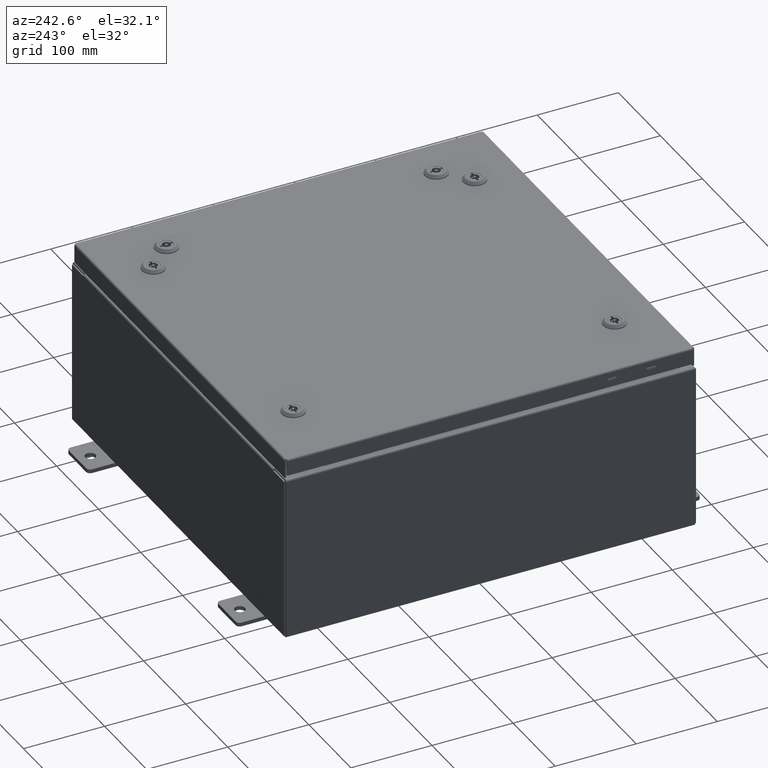
[diagram: clean part render]
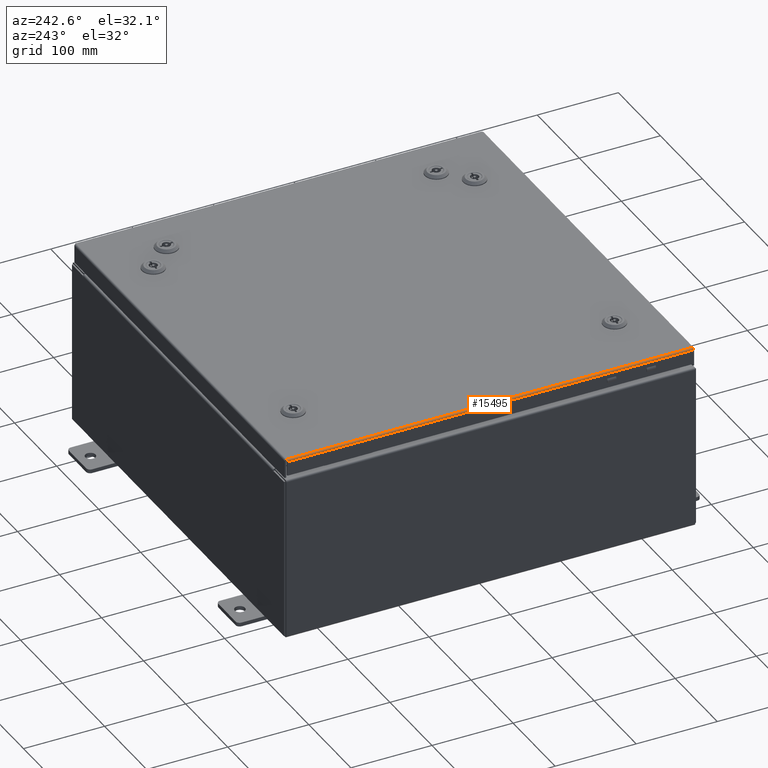
[diagram: same view with one face highlighted and labeled with its STEP entity id]
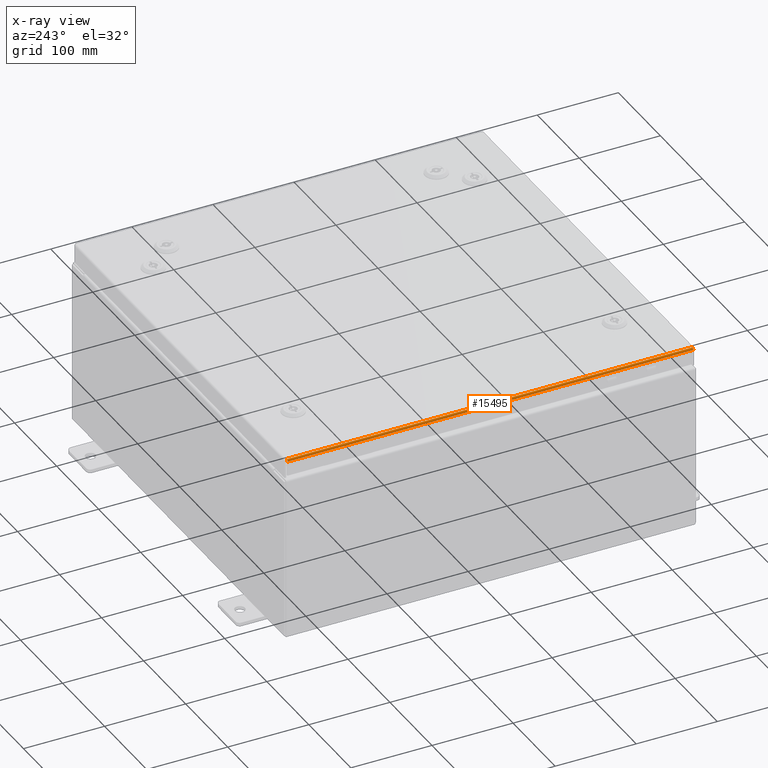
[diagram: x-ray of the same camera — body ghosted, the highlighted face saturated]
A machine part, auxiliary view. The second image highlights one B-rep face of the part: STEP entity #15495.
The next image is the same camera in x-ray: the body ghosted, the highlighted face saturated — about 0% of this face is hidden behind the body in this view.
In plain terms, the highlighted cylindrical surface (edge-blend (fillet) strip) has radius 2.2276 mm, axis along (0, 1, 0).
Its self-contained STEP definition (entity closure, byte-faithful):
#433 = EDGE_LOOP ( 'NONE', ( #58012, #15001, #61256, #41001 ) ) ;
#2047 = CARTESIAN_POINT ( 'NONE',  ( -9.937500000000001800, 9.848657864376269400, -0.08770000000000026400 ) ) ;
#2262 = CARTESIAN_POINT ( 'NONE',  ( -9.937500000000000000, -9.848657864376273000, -0.08770000000000026400 ) ) ;
#4376 = CARTESIAN_POINT ( 'NONE',  ( -9.872755289458313000, -9.849609644062715200, -0.002282596256190999900 ) ) ;
#9315 = CARTESIAN_POINT ( 'NONE',  ( -9.903695747341799900, -9.849324110156782600, -0.01756921792168139200 ) ) ;
#9392 = EDGE_CURVE ( 'NONE', #31898, #34465, #19656, .T. ) ;
#13296 = VERTEX_POINT ( 'NONE', #33043 ) ;
#14313 = CARTESIAN_POINT ( 'NONE',  ( -9.926431066258668800, -9.849038576250846300, -0.04353261542147312400 ) ) ;
#15001 = ORIENTED_EDGE ( 'NONE', *, *, #15307, .F. ) ;
#15307 = EDGE_CURVE ( 'NONE', #13296, #31898, #26322, .T. ) ;
#15311 = VERTEX_POINT ( 'NONE', #2262 ) ;
#15349 = DIRECTION ( 'NONE',  ( 0.0000000000000000000, -1.000000000000000000, 0.0000000000000000000 ) ) ;
#15495 = ADVANCED_FACE ( 'NONE', ( #50038 ), #22418, .T. ) ;
#16258 = AXIS2_PLACEMENT_3D ( 'NONE', #17965, #57057, #27799 ) ;
#16929 = CARTESIAN_POINT ( 'NONE',  ( -9.926431066258667000, 9.849038576250844600, -0.04353261542147309600 ) ) ;
#17965 = CARTESIAN_POINT ( 'NONE',  ( -9.849800000000001900, 9.849799999999996600, -0.08770000000000026400 ) ) ;
#19239 = CARTESIAN_POINT ( 'NONE',  ( -9.937500000000000000, -9.848753042344915400, -0.07622009684500730100 ) ) ;
#19656 = LINE ( 'NONE', #30105, #32734 ) ;
#21789 = CARTESIAN_POINT ( 'NONE',  ( -9.903695747341799900, 9.849324110156775400, -0.01756921792168139200 ) ) ;
#22418 = CYLINDRICAL_SURFACE ( 'NONE', #16258, 0.08769999999999808500 ) ;
#23687 = LINE ( 'NONE', #31235, #35243 ) ;
#23929 = CARTESIAN_POINT ( 'NONE',  ( -9.861279903154994000, -9.849704822031359400, -2.356919197365833100E-015 ) ) ;
#25450 = CARTESIAN_POINT ( 'NONE',  ( -9.849799999999996600, -9.849800000000001900, 0.0000000000000000000 ) ) ;
#26322 = B_SPLINE_CURVE_WITH_KNOTS ( 'NONE', 3,
 ( #2047, #31524, #46251, #16929, #51163, #21789, #56006, #26768, #60968, #31734 ),
 .UNSPECIFIED., .F., .F.,
 ( 4, 2, 2, 2, 4 ),
 ( 0.0000000000000000000, 0.2500000000000000000, 0.5000000000000000000, 0.7500000000000000000, 1.000000000000000000 ),
 .UNSPECIFIED. ) ;
#26768 = CARTESIAN_POINT ( 'NONE',  ( -9.872755289458309500, 9.849609644062709900, -0.002282596256190999900 ) ) ;
#27799 = DIRECTION ( 'NONE',  ( -1.000000000000000000, 0.0000000000000000000, 6.035297021350771100E-015 ) ) ;
#30105 = CARTESIAN_POINT ( 'NONE',  ( -9.849800000000001900, 9.849799999999996600, -2.185478394931410600E-015 ) ) ;
#31235 = CARTESIAN_POINT ( 'NONE',  ( -9.937500000000000000, -9.937500000000001800, -0.08770000000000026400 ) ) ;
#31524 = CARTESIAN_POINT ( 'NONE',  ( -9.937499999999994700, 9.848753042344910100, -0.07622009684500730100 ) ) ;
#31734 = CARTESIAN_POINT ( 'NONE',  ( -9.849800000000001900, 9.849799999999996600, -2.185478394931410600E-015 ) ) ;
#31898 = VERTEX_POINT ( 'NONE', #33153 ) ;
#32734 = VECTOR ( 'NONE', #15349, 39.37007874015748100 ) ;
#32988 = EDGE_CURVE ( 'NONE', #13296, #15311, #23687, .T. ) ;
#33043 = CARTESIAN_POINT ( 'NONE',  ( -9.937500000000001800, 9.848657864376269400, -0.08770000000000026400 ) ) ;
#33153 = CARTESIAN_POINT ( 'NONE',  ( -9.849800000000001900, 9.849799999999996600, -2.185478394931410600E-015 ) ) ;
#34465 = VERTEX_POINT ( 'NONE', #25450 ) ;
#35243 = VECTOR ( 'NONE', #36177, 39.37007874015748100 ) ;
#35512 = EDGE_CURVE ( 'NONE', #34465, #15311, #59288, .T. ) ;
#36177 = DIRECTION ( 'NONE',  ( 1.099611771034679600E-016, -1.000000000000000000, -4.554220009055657300E-045 ) ) ;
#38733 = CARTESIAN_POINT ( 'NONE',  ( -9.893967384578521900, -9.849419288125425000, -0.01106893374133357700 ) ) ;
#41001 = ORIENTED_EDGE ( 'NONE', *, *, #35512, .F. ) ;
#43655 = CARTESIAN_POINT ( 'NONE',  ( -9.919930782078322900, -9.849133754219494100, -0.03380425265820124300 ) ) ;
#46251 = CARTESIAN_POINT ( 'NONE',  ( -9.935217403743813200, 9.848848220313559700, -0.06474471054169149400 ) ) ;
#48575 = CARTESIAN_POINT ( 'NONE',  ( -9.935217403743813200, -9.848848220313561400, -0.06474471054169148000 ) ) ;
#50038 = FACE_OUTER_BOUND ( 'NONE', #433, .T. ) ;
#51163 = CARTESIAN_POINT ( 'NONE',  ( -9.919930782078322900, 9.849133754219488800, -0.03380425265820124300 ) ) ;
#53440 = CARTESIAN_POINT ( 'NONE',  ( -9.937500000000000000, -9.848657864376273000, -0.08770000000000026400 ) ) ;
#56006 = CARTESIAN_POINT ( 'NONE',  ( -9.893967384578527200, 9.849419288125421400, -0.01106893374133357900 ) ) ;
#57057 = DIRECTION ( 'NONE',  ( -0.0000000000000000000, 1.000000000000000000, -0.0000000000000000000 ) ) ;
#58012 = ORIENTED_EDGE ( 'NONE', *, *, #9392, .F. ) ;
#59288 = B_SPLINE_CURVE_WITH_KNOTS ( 'NONE', 3,
 ( #63065, #23929, #4376, #38733, #9315, #43655, #14313, #48575, #19239, #53440 ),
 .UNSPECIFIED., .F., .F.,
 ( 4, 2, 2, 2, 4 ),
 ( 0.0000000000000000000, 0.2500000000000000000, 0.5000000000000000000, 0.7500000000000000000, 1.000000000000000000 ),
 .UNSPECIFIED. ) ;
#60968 = CARTESIAN_POINT ( 'NONE',  ( -9.861279903154994000, 9.849704822031354100, -2.356152199027769400E-015 ) ) ;
#61256 = ORIENTED_EDGE ( 'NONE', *, *, #32988, .T. ) ;
#63065 = CARTESIAN_POINT ( 'NONE',  ( -9.849799999999996600, -9.849800000000001900, 0.0000000000000000000 ) ) ;